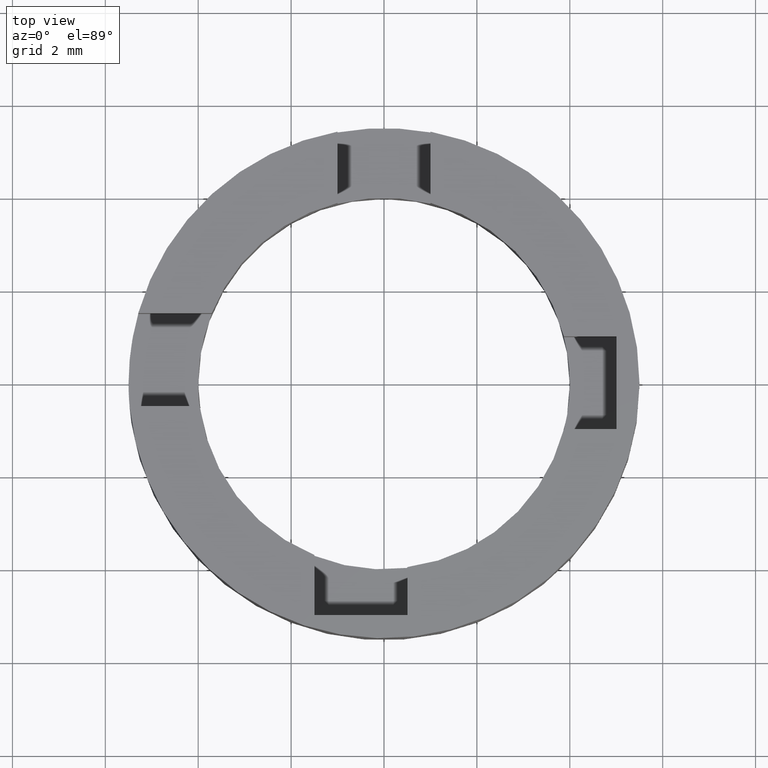
[diagram: clean part render]
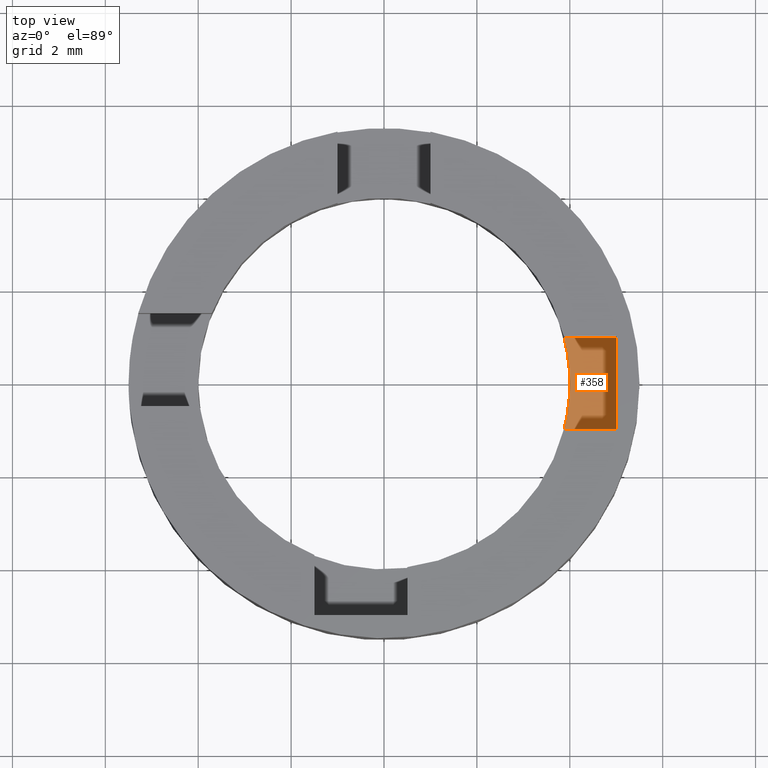
[diagram: same view with one face highlighted and labeled with its STEP entity id]
A machine part, top view. The second image highlights one B-rep face of the part: STEP entity #358.
In plain terms, the highlighted planar face has unit normal (0, 0, -1).
Its self-contained STEP definition (entity closure, byte-faithful):
#5 = DIRECTION ( 'NONE',  ( 0.000000000000000000, 0.000000000000000000, -1.000000000000000000 ) ) ;
#14 = DIRECTION ( 'NONE',  ( 0.000000000000000000, 0.000000000000000000, -1.000000000000000000 ) ) ;
#18 = VERTEX_POINT ( 'NONE', #21 ) ;
#21 = CARTESIAN_POINT ( 'NONE',  ( 5.000000000000301981, -0.9999999999999544809, 1.500000000000000000 ) ) ;
#34 = ORIENTED_EDGE ( 'NONE', *, *, #604, .T. ) ;
#110 = CARTESIAN_POINT ( 'NONE',  ( 3.872983346207404587, 1.000000000000045741, 1.500000000000000000 ) ) ;
#127 = EDGE_CURVE ( 'NONE', #232, #215, #514, .T. ) ;
#137 = EDGE_CURVE ( 'NONE', #516, #18, #779, .T. ) ;
#144 = PLANE ( 'NONE',  #769 ) ;
#146 = CARTESIAN_POINT ( 'NONE',  ( 5.000000000000301981, 1.000000000000045519, 1.500000000000000000 ) ) ;
#184 = VECTOR ( 'NONE', #338, 1000.000000000000000 ) ;
#215 = VERTEX_POINT ( 'NONE', #110 ) ;
#216 = EDGE_CURVE ( 'NONE', #215, #448, #459, .T. ) ;
#223 = EDGE_CURVE ( 'NONE', #448, #516, #463, .T. ) ;
#229 = CARTESIAN_POINT ( 'NONE',  ( 2.805037895306202067, -0.9999999999999540368, 1.500000000000000000 ) ) ;
#231 = ORIENTED_EDGE ( 'NONE', *, *, #216, .T. ) ;
#232 = VERTEX_POINT ( 'NONE', #146 ) ;
#236 = VECTOR ( 'NONE', #566, 1000.000000000000000 ) ;
#250 = ORIENTED_EDGE ( 'NONE', *, *, #127, .T. ) ;
#268 = CARTESIAN_POINT ( 'NONE',  ( 3.872983346207428568, -0.9999999999999542588, 1.500000000000000000 ) ) ;
#338 = DIRECTION ( 'NONE',  ( 0.000000000000000000, 1.000000000000000000, 0.000000000000000000 ) ) ;
#345 = AXIS2_PLACEMENT_3D ( 'NONE', #688, #5, #370 ) ;
#358 = ADVANCED_FACE ( 'NONE', ( #697 ), #144, .F. ) ;
#370 = DIRECTION ( 'NONE',  ( -1.000000000000000000, 0.000000000000000000, 0.000000000000000000 ) ) ;
#394 = CARTESIAN_POINT ( 'NONE',  ( 2.805037895306201623, 1.000000000000045963, 1.500000000000000000 ) ) ;
#421 = DIRECTION ( 'NONE',  ( -1.000000000000000000, 0.000000000000000000, -0.000000000000000000 ) ) ;
#428 = AXIS2_PLACEMENT_3D ( 'NONE', #542, #14, #530 ) ;
#435 = ORIENTED_EDGE ( 'NONE', *, *, #137, .T. ) ;
#448 = VERTEX_POINT ( 'NONE', #511 ) ;
#459 = CIRCLE ( 'NONE', #345, 4.000000000000000000 ) ;
#463 = CIRCLE ( 'NONE', #428, 4.000000000000000000 ) ;
#505 = ORIENTED_EDGE ( 'NONE', *, *, #223, .T. ) ;
#511 = CARTESIAN_POINT ( 'NONE',  ( 4.000000000000000000, 4.898587196589412829E-16, 1.500000000000000000 ) ) ;
#514 = LINE ( 'NONE', #394, #236 ) ;
#516 = VERTEX_POINT ( 'NONE', #268 ) ;
#530 = DIRECTION ( 'NONE',  ( -1.000000000000000000, 0.000000000000000000, 0.000000000000000000 ) ) ;
#542 = CARTESIAN_POINT ( 'NONE',  ( 0.000000000000000000, 0.000000000000000000, 1.500000000000000000 ) ) ;
#566 = DIRECTION ( 'NONE',  ( -1.000000000000000000, 1.975801167895978460E-16, -0.000000000000000000 ) ) ;
#594 = DIRECTION ( 'NONE',  ( 1.000000000000000000, -1.975801167895978706E-16, 0.000000000000000000 ) ) ;
#604 = EDGE_CURVE ( 'NONE', #18, #232, #708, .T. ) ;
#642 = CARTESIAN_POINT ( 'NONE',  ( 5.000000000000301981, -0.9999999999999544809, 1.500000000000000000 ) ) ;
#682 = CARTESIAN_POINT ( 'NONE',  ( 0.000000000000000000, 0.000000000000000000, 1.500000000000000000 ) ) ;
#688 = CARTESIAN_POINT ( 'NONE',  ( 0.000000000000000000, 0.000000000000000000, 1.500000000000000000 ) ) ;
#690 = DIRECTION ( 'NONE',  ( 0.000000000000000000, 0.000000000000000000, -1.000000000000000000 ) ) ;
#697 = FACE_OUTER_BOUND ( 'NONE', #778, .T. ) ;
#708 = LINE ( 'NONE', #642, #184 ) ;
#769 = AXIS2_PLACEMENT_3D ( 'NONE', #682, #690, #421 ) ;
#776 = VECTOR ( 'NONE', #594, 1000.000000000000000 ) ;
#778 = EDGE_LOOP ( 'NONE', ( #231, #505, #435, #34, #250 ) ) ;
#779 = LINE ( 'NONE', #229, #776 ) ;